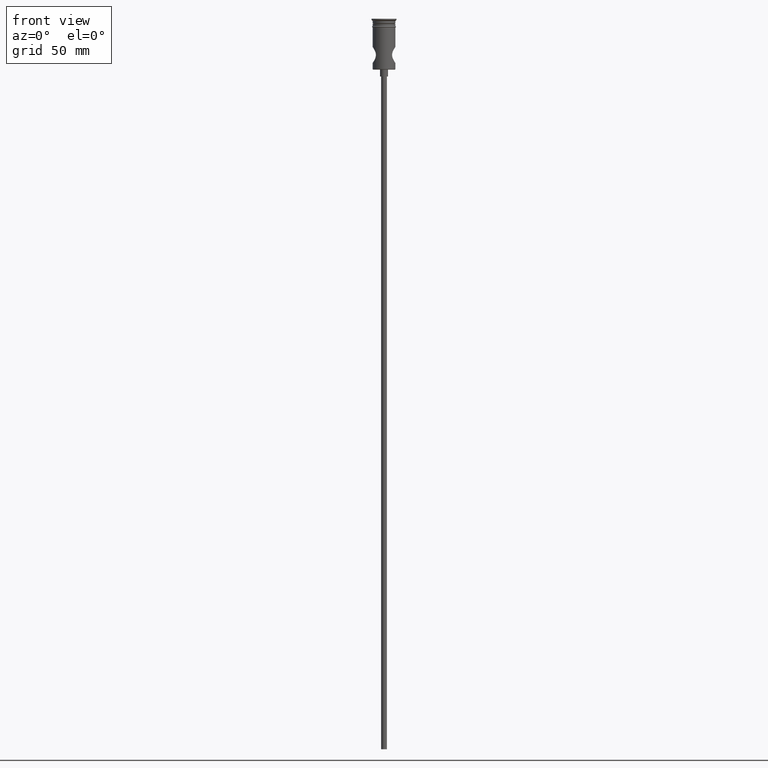
[diagram: clean part render]
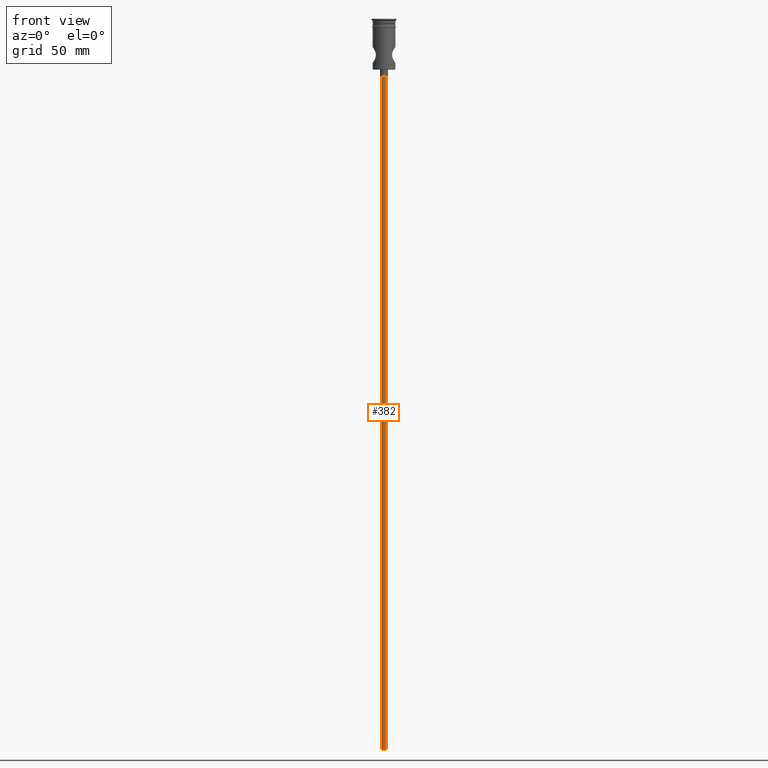
[diagram: same view with one face highlighted and labeled with its STEP entity id]
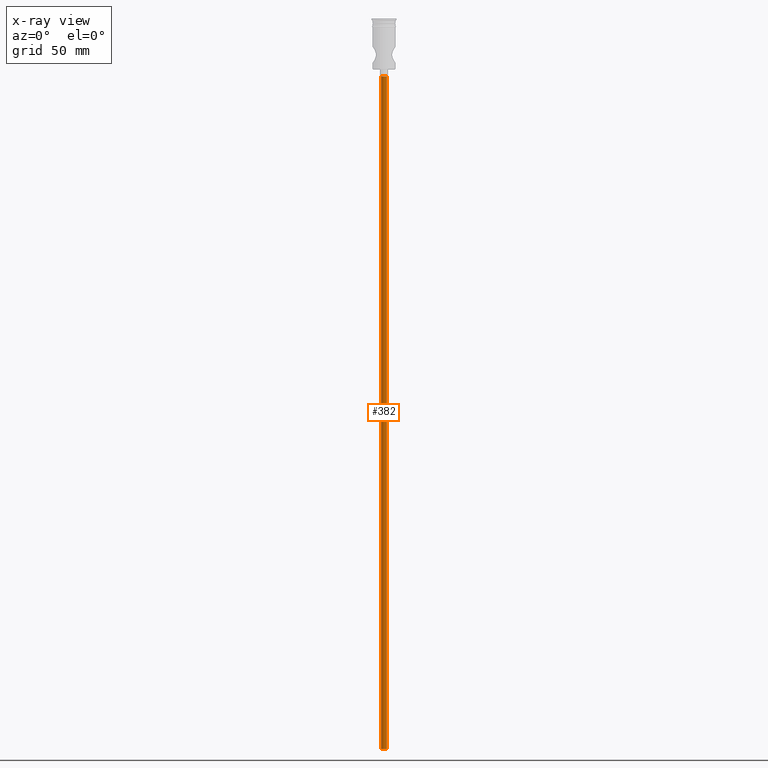
[diagram: x-ray of the same camera — body ghosted, the highlighted face saturated]
A machine part, front view. The second image highlights one B-rep face of the part: STEP entity #382.
The next image is the same camera in x-ray: the body ghosted, the highlighted face saturated — about 0% of this face is hidden behind the body in this view.
In plain terms, the highlighted cylindrical surface (edge-blend (fillet) strip) has radius 1.25 mm, axis along (-0, -0, 1).
Its self-contained STEP definition (entity closure, byte-faithful):
#9 = AXIS2_PLACEMENT_3D ( 'NONE', #519, #301, #831 ) ;
#37 = DIRECTION ( 'NONE',  ( -0.000000000000000000, -0.000000000000000000, 1.000000000000000000 ) ) ;
#45 = AXIS2_PLACEMENT_3D ( 'NONE', #1087, #199, #1368 ) ;
#48 = CARTESIAN_POINT ( 'NONE',  ( 1.250000000000000000, 0.000000000000000000, -322.5000000000000000 ) ) ;
#78 = CYLINDRICAL_SURFACE ( 'NONE', #9, 1.250000000000000000 ) ;
#99 = VECTOR ( 'NONE', #37, 1000.000000000000000 ) ;
#114 = CARTESIAN_POINT ( 'NONE',  ( -1.250000000000000000, 1.530808498934191571E-16, -322.5000000000000000 ) ) ;
#150 = AXIS2_PLACEMENT_3D ( 'NONE', #245, #674, #1135 ) ;
#199 = DIRECTION ( 'NONE',  ( 0.000000000000000000, 0.000000000000000000, -1.000000000000000000 ) ) ;
#219 = VERTEX_POINT ( 'NONE', #415 ) ;
#244 = VECTOR ( 'NONE', #555, 1000.000000000000000 ) ;
#245 = CARTESIAN_POINT ( 'NONE',  ( 0.000000000000000000, 0.000000000000000000, -322.5000000000000000 ) ) ;
#254 = EDGE_CURVE ( 'NONE', #864, #219, #260, .T. ) ;
#260 = LINE ( 'NONE', #114, #244 ) ;
#296 = ORIENTED_EDGE ( 'NONE', *, *, #254, .F. ) ;
#301 = DIRECTION ( 'NONE',  ( -0.000000000000000000, -0.000000000000000000, 1.000000000000000000 ) ) ;
#339 = EDGE_LOOP ( 'NONE', ( #296, #1295, #801, #1105 ) ) ;
#382 = ADVANCED_FACE ( 'NONE', ( #928 ), #78, .T. ) ;
#415 = CARTESIAN_POINT ( 'NONE',  ( -1.250000000000000000, 1.530808498934191571E-16, -25.50000000000000000 ) ) ;
#519 = CARTESIAN_POINT ( 'NONE',  ( 0.000000000000000000, 0.000000000000000000, -322.5000000000000000 ) ) ;
#548 = EDGE_CURVE ( 'NONE', #1247, #864, #786, .T. ) ;
#555 = DIRECTION ( 'NONE',  ( -0.000000000000000000, -0.000000000000000000, 1.000000000000000000 ) ) ;
#674 = DIRECTION ( 'NONE',  ( 0.000000000000000000, 0.000000000000000000, -1.000000000000000000 ) ) ;
#786 = CIRCLE ( 'NONE', #150, 1.250000000000000000 ) ;
#801 = ORIENTED_EDGE ( 'NONE', *, *, #1271, .T. ) ;
#831 = DIRECTION ( 'NONE',  ( 1.000000000000000000, 0.000000000000000000, 0.000000000000000000 ) ) ;
#864 = VERTEX_POINT ( 'NONE', #1428 ) ;
#895 = EDGE_CURVE ( 'NONE', #1163, #219, #911, .T. ) ;
#911 = CIRCLE ( 'NONE', #45, 1.250000000000000000 ) ;
#928 = FACE_OUTER_BOUND ( 'NONE', #339, .T. ) ;
#1032 = LINE ( 'NONE', #48, #99 ) ;
#1087 = CARTESIAN_POINT ( 'NONE',  ( 0.000000000000000000, 0.000000000000000000, -25.50000000000000000 ) ) ;
#1105 = ORIENTED_EDGE ( 'NONE', *, *, #895, .T. ) ;
#1135 = DIRECTION ( 'NONE',  ( -1.000000000000000000, 0.000000000000000000, 0.000000000000000000 ) ) ;
#1163 = VERTEX_POINT ( 'NONE', #1274 ) ;
#1171 = CARTESIAN_POINT ( 'NONE',  ( 1.250000000000000000, 0.000000000000000000, -322.5000000000000000 ) ) ;
#1247 = VERTEX_POINT ( 'NONE', #1171 ) ;
#1271 = EDGE_CURVE ( 'NONE', #1247, #1163, #1032, .T. ) ;
#1274 = CARTESIAN_POINT ( 'NONE',  ( 1.250000000000000000, 0.000000000000000000, -25.50000000000000000 ) ) ;
#1295 = ORIENTED_EDGE ( 'NONE', *, *, #548, .F. ) ;
#1368 = DIRECTION ( 'NONE',  ( -1.000000000000000000, 0.000000000000000000, 0.000000000000000000 ) ) ;
#1428 = CARTESIAN_POINT ( 'NONE',  ( -1.250000000000000000, 1.530808498934191571E-16, -322.5000000000000000 ) ) ;